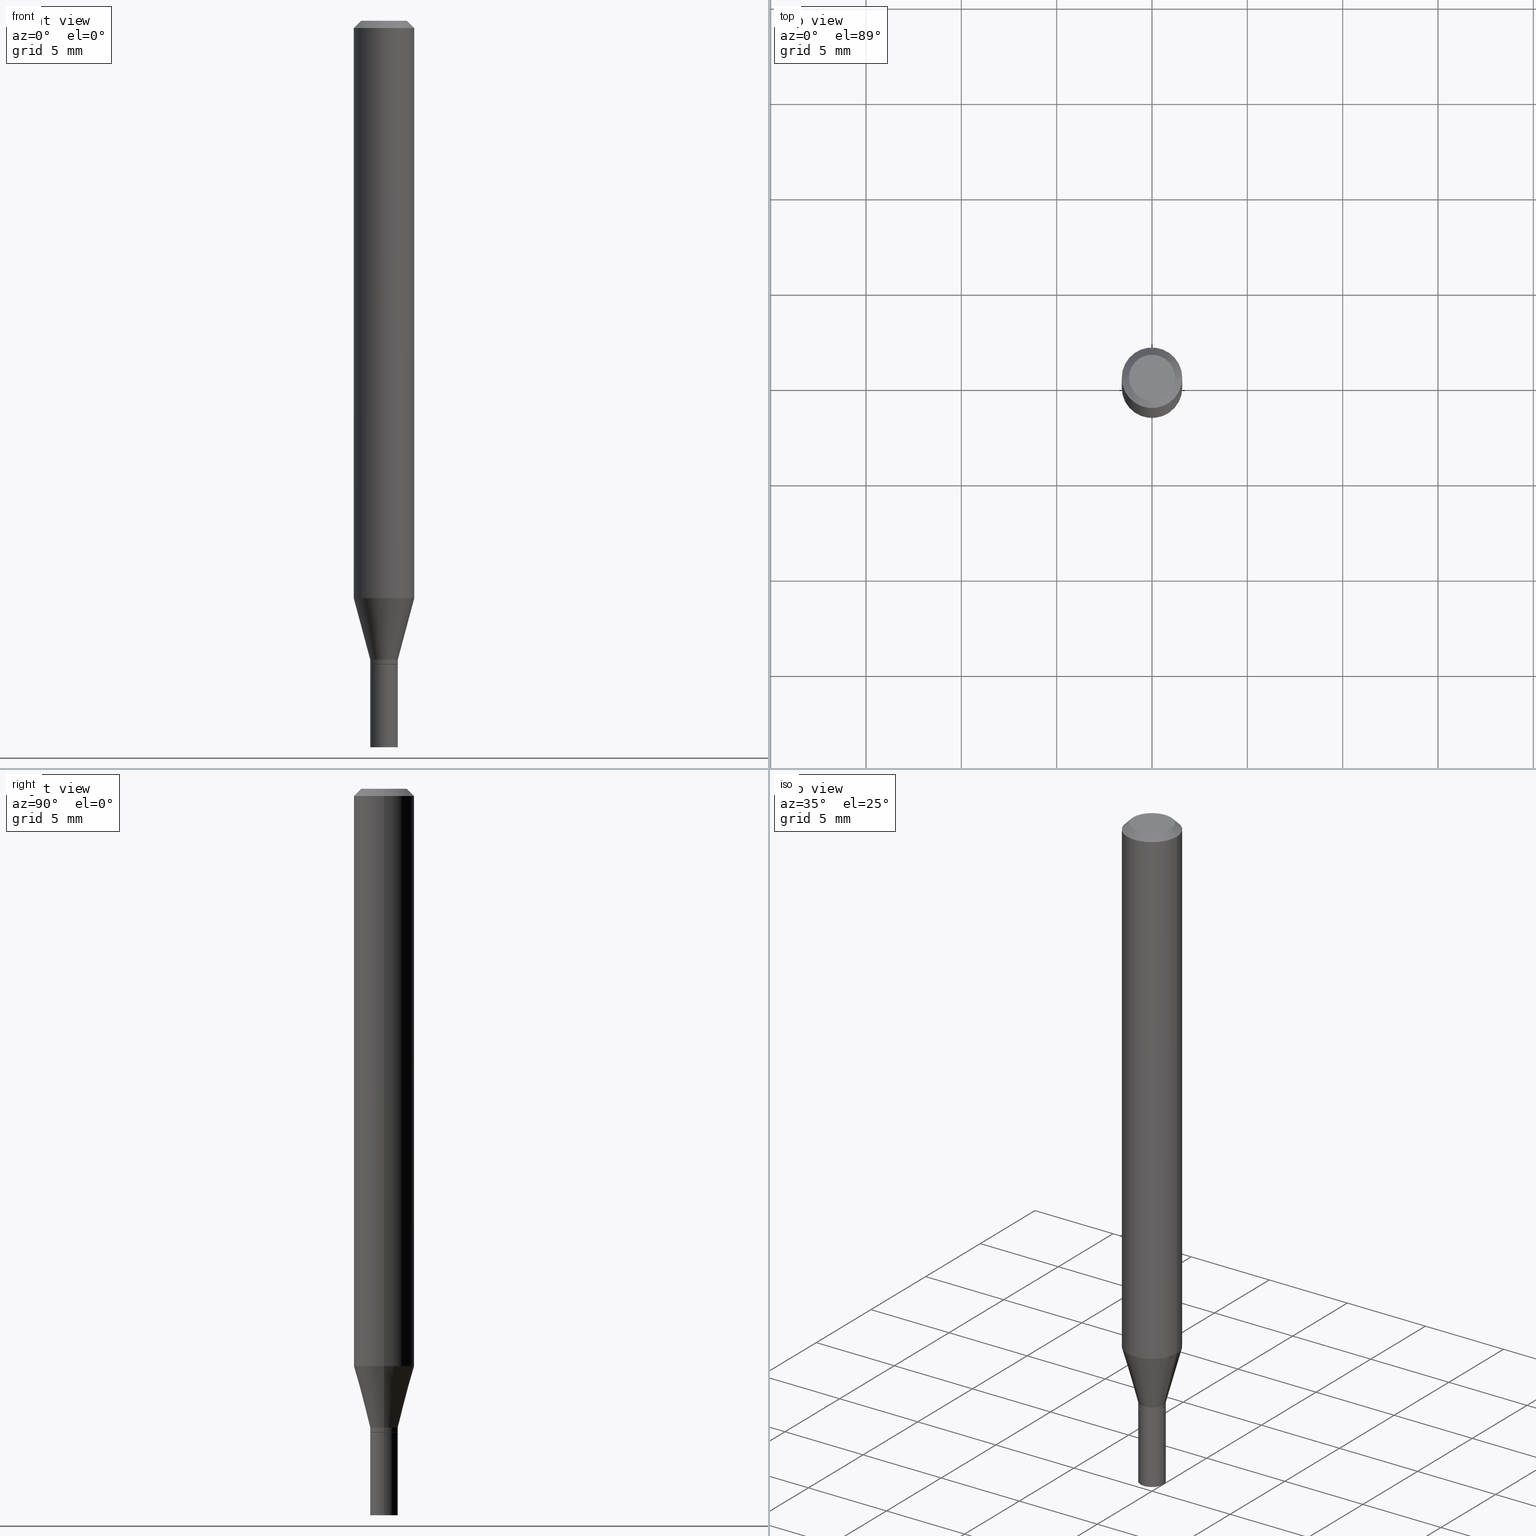
[diagram: canonical four-view strip — front | top / right | iso, engineering-drawing reading convention]
A machine part, canonical four-view strip (front | top / right | iso — engineering-drawing reading convention). The complete STEP part file that produces these views, byte-faithful:
ISO-10303-21;
HEADER;
FILE_DESCRIPTION (( 'STEP AP203' ),
    '1' );
FILE_NAME ('00495.STEP',
    '2024-03-19T21:23:39',
    ( '' ),
    ( '' ),
    'SwSTEP 2.0',
    'SolidWorks 2023',
    '' );
FILE_SCHEMA (( 'CONFIG_CONTROL_DESIGN' ));
ENDSEC;

DATA;
#1 = ORIENTED_EDGE ( 'NONE', *, *, #116, .T. ) ;
#2 = DIRECTION ( 'NONE',  ( -2.445468806185136597E-29, 3.491481338843145583E-15, 1.000000000000000000 ) ) ;
#3 = AXIS2_PLACEMENT_3D ( 'NONE', #456, #233, #277 ) ;
#4 = VERTEX_POINT ( 'NONE', #187 ) ;
#5 = LOCAL_TIME ( 17, 23, 39.00000000000000000, #194 ) ;
#6 = FACE_OUTER_BOUND ( 'NONE', #301, .T. ) ;
#7 = ORIENTED_EDGE ( 'NONE', *, *, #49, .F. ) ;
#8 = EDGE_CURVE ( 'NONE', #391, #222, #180, .T. ) ;
#9 = DIRECTION ( 'NONE',  ( 1.000000000000000000, -6.982962677686280910E-15, 0.000000000000000000 ) ) ;
#10 = DATE_TIME_ROLE ( 'creation_date' ) ;
#11 = CARTESIAN_POINT ( 'NONE',  ( 0.02849999999999991776, -4.804278322248167148E-15, -1.318999999999999950 ) ) ;
#12 = VECTOR ( 'NONE', #348, 39.37007874015748143 ) ;
#13 =( NAMED_UNIT ( * ) PLANE_ANGLE_UNIT ( ) SI_UNIT ( $, .RADIAN. ) );
#14 = PERSON_AND_ORGANIZATION ( #144, #352 ) ;
#15 = CARTESIAN_POINT ( 'NONE',  ( -0.02799999999999999711, -4.441226733309713639E-15, -1.329000000000000181 ) ) ;
#16 = CARTESIAN_POINT ( 'NONE',  ( 0.02799999999999999711, -4.835701654297756579E-15, -1.329000000000000181 ) ) ;
#17 = AXIS2_PLACEMENT_3D ( 'NONE', #200, #416, #241 ) ;
#18 = CC_DESIGN_APPROVAL ( #303, ( #411 ) ) ;
#19 = LINE ( 'NONE', #236, #57 ) ;
#20 = DIRECTION ( 'NONE',  ( -2.445468806185136877E-29, 3.491481338843145188E-15, 1.000000000000000000 ) ) ;
#21 = DIRECTION ( 'NONE',  ( 1.000000000000000000, -6.982962677686265922E-15, 0.000000000000000000 ) ) ;
#22 = CONICAL_SURFACE ( 'NONE', #357, 0.06250000000000000000, 0.7853981633974567167 ) ;
#23 = CARTESIAN_POINT ( 'NONE',  ( 0.06250000000000000000, -4.888073874380388472E-16, -0.01499999999999999944 ) ) ;
#24 = LOCAL_TIME ( 17, 23, 39.00000000000000000, #41 ) ;
#25 = DIRECTION ( 'NONE',  ( -2.445468806185136597E-29, 3.491481338843145583E-15, 1.000000000000000000 ) ) ;
#26 = ADVANCED_FACE ( 'NONE', ( #330 ), #390, .T. ) ;
#27 = FACE_OUTER_BOUND ( 'NONE', #73, .T. ) ;
#28 = DIRECTION ( 'NONE',  ( -2.445468806185136597E-29, 3.491481338843145583E-15, 1.000000000000000000 ) ) ;
#29 = VERTEX_POINT ( 'NONE', #11 ) ;
#30 = ADVANCED_FACE ( 'NONE', ( #298 ), #156, .T. ) ;
#31 = PLANE ( 'NONE',  #172 ) ;
#32 = ORIENTED_EDGE ( 'NONE', *, *, #130, .T. ) ;
#33 = CARTESIAN_POINT ( 'NONE',  ( 6.093689898318465335E-45, -8.700174179635472181E-31, -2.491828921680032634E-16 ) ) ;
#34 = VERTEX_POINT ( 'NONE', #85 ) ;
#35 = DIRECTION ( 'NONE',  ( 1.000000000000000000, -6.982962677686265922E-15, 4.876176775795935232E-29 ) ) ;
#36 = AXIS2_PLACEMENT_3D ( 'NONE', #152, #294, #226 ) ;
#37 = ORIENTED_EDGE ( 'NONE', *, *, #83, .F. ) ;
#38 = AXIS2_PLACEMENT_3D ( 'NONE', #137, #213, #35 ) ;
#39 = CALENDAR_DATE ( 2024, 19, 3 ) ;
#40 = EDGE_LOOP ( 'NONE', ( #76, #71, #102, #372 ) ) ;
#41 = COORDINATED_UNIVERSAL_TIME_OFFSET ( 5, 0, .BEHIND. ) ;
#42 = ORIENTED_EDGE ( 'NONE', *, *, #130, .F. ) ;
#43 = PERSON_AND_ORGANIZATION_ROLE ( 'design_supplier' ) ;
#44 = AXIS2_PLACEMENT_3D ( 'NONE', #311, #350, #21 ) ;
#45 = AXIS2_PLACEMENT_3D ( 'NONE', #314, #103, #142 ) ;
#46 = DIRECTION ( 'NONE',  ( -2.438088387897960049E-29, 3.491481338843145188E-15, 1.000000000000000000 ) ) ;
#47 = EDGE_CURVE ( 'NONE', #400, #64, #461, .T. ) ;
#48 = CARTESIAN_POINT ( 'NONE',  ( 0.000000000000000000, 0.000000000000000000, 0.000000000000000000 ) ) ;
#49 = EDGE_CURVE ( 'NONE', #387, #138, #239, .T. ) ;
#50 = CIRCLE ( 'NONE', #318, 0.04749999999999999362 ) ;
#51 = DATE_TIME_ROLE ( 'classification_date' ) ;
#52 = CIRCLE ( 'NONE', #392, 0.04749999999999999362 ) ;
#53 = LINE ( 'NONE', #269, #12 ) ;
#54 = CARTESIAN_POINT ( 'NONE',  ( 3.250028043420046945E-29, -4.640178699322541079E-15, -1.329000000000000181 ) ) ;
#55 = LINE ( 'NONE', #238, #309 ) ;
#56 = ADVANCED_BREP_SHAPE_REPRESENTATION ( '00495', ( #82, #388, #167 ), #246 ) ;
#57 = VECTOR ( 'NONE', #454, 39.37007874015748143 ) ;
#58 = EDGE_CURVE ( 'NONE', #391, #34, #191, .T. ) ;
#59 = FACE_OUTER_BOUND ( 'NONE', #40, .T. ) ;
#60 = VECTOR ( 'NONE', #243, 39.37007874015748854 ) ;
#61 = APPROVAL_DATE_TIME ( #375, #199 ) ;
#62 = CYLINDRICAL_SURFACE ( 'NONE', #3, 0.02850000000000000103 ) ;
#63 = DIRECTION ( 'NONE',  ( -2.445468806185136877E-29, 3.491481338843145188E-15, 1.000000000000000000 ) ) ;
#64 = VERTEX_POINT ( 'NONE', #263 ) ;
#65 = ADVANCED_FACE ( 'NONE', ( #412 ), #209, .T. ) ;
#66 = CARTESIAN_POINT ( 'NONE',  ( 0.02850000000000000103, -5.436236444578777472E-15, -1.500000000000000222 ) ) ;
#67 = CONICAL_SURFACE ( 'NONE', #218, 0.02799999999999999711, 0.7853981633974739252 ) ;
#68 = AXIS2_PLACEMENT_3D ( 'NONE', #129, #132, #201 ) ;
#69 = ORIENTED_EDGE ( 'NONE', *, *, #153, .F. ) ;
#70 = LINE ( 'NONE', #279, #60 ) ;
#71 = ORIENTED_EDGE ( 'NONE', *, *, #230, .T. ) ;
#72 = DIRECTION ( 'NONE',  ( -1.000000000000000000, 6.982962677686265922E-15, -4.876176775795935793E-29 ) ) ;
#73 = EDGE_LOOP ( 'NONE', ( #78, #143 ) ) ;
#74 = EDGE_CURVE ( 'NONE', #222, #415, #340, .T. ) ;
#75 = VECTOR ( 'NONE', #308, 39.37007874015748143 ) ;
#76 = ORIENTED_EDGE ( 'NONE', *, *, #162, .F. ) ;
#77 = DATE_AND_TIME ( #39, #228 ) ;
#78 = ORIENTED_EDGE ( 'NONE', *, *, #49, .T. ) ;
#79 = COORDINATED_UNIVERSAL_TIME_OFFSET ( 5, 0, .BEHIND. ) ;
#80 = ORIENTED_EDGE ( 'NONE', *, *, #170, .T. ) ;
#81 = EDGE_LOOP ( 'NONE', ( #253, #32, #1, #286 ) ) ;
#82 = MANIFOLD_SOLID_BREP ( 'Body-Move/Copy2[1]', #122 ) ;
#83 = EDGE_CURVE ( 'NONE', #356, #29, #409, .T. ) ;
#84 = DIRECTION ( 'NONE',  ( 1.000000000000000000, -6.982962677686265922E-15, 4.876176775795935793E-29 ) ) ;
#85 = CARTESIAN_POINT ( 'NONE',  ( -0.02849999999999992470, -4.435928278961492815E-15, -1.328500000000000236 ) ) ;
#86 = CIRCLE ( 'NONE', #455, 0.02850000000000000103 ) ;
#87 = VECTOR ( 'NONE', #63, 39.37007874015748143 ) ;
#88 = DATE_AND_TIME ( #446, #147 ) ;
#89 = CARTESIAN_POINT ( 'NONE',  ( 3.250028043420046945E-29, -4.640178699322541079E-15, -1.329000000000000181 ) ) ;
#90 = PRODUCT_RELATED_PRODUCT_CATEGORY ( 'detail', '', ( #406 ) ) ;
#91 = DIRECTION ( 'NONE',  ( 1.000000000000000000, -6.982962677686268288E-15, 0.000000000000000000 ) ) ;
#92 = LINE ( 'NONE', #382, #75 ) ;
#93 = AXIS2_PLACEMENT_3D ( 'NONE', #261, #335, #91 ) ;
#94 = DIRECTION ( 'NONE',  ( -2.445468806185136877E-29, 3.491481338843145188E-15, 1.000000000000000000 ) ) ;
#95 = ORIENTED_EDGE ( 'NONE', *, *, #370, .T. ) ;
#96 = CARTESIAN_POINT ( 'NONE',  ( 3.250028043420046945E-29, -4.640178699322541079E-15, -1.329000000000000181 ) ) ;
#97 = DIRECTION ( 'NONE',  ( 1.000000000000000000, -6.982962677686270655E-15, 0.000000000000000000 ) ) ;
#98 = ORIENTED_EDGE ( 'NONE', *, *, #47, .T. ) ;
#99 = AXIS2_PLACEMENT_3D ( 'NONE', #89, #259, #193 ) ;
#100 = DIRECTION ( 'NONE',  ( 1.000000000000000000, -6.982962677686264344E-15, 0.000000000000000000 ) ) ;
#101 = CARTESIAN_POINT ( 'NONE',  ( 6.093689898318465335E-45, -8.700174179635472181E-31, -2.491828921680032634E-16 ) ) ;
#102 = ORIENTED_EDGE ( 'NONE', *, *, #285, .T. ) ;
#103 = DIRECTION ( 'NONE',  ( -2.445468806185136597E-29, 3.491481338843145583E-15, 1.000000000000000000 ) ) ;
#104 = ORIENTED_EDGE ( 'NONE', *, *, #363, .T. ) ;
#105 = DIRECTION ( 'NONE',  ( -2.445468806185136597E-29, 3.491481338843145583E-15, 1.000000000000000000 ) ) ;
#106 = AXIS2_PLACEMENT_3D ( 'NONE', #160, #257, #113 ) ;
#107 = CIRCLE ( 'NONE', #189, 0.06250000000000000000 ) ;
#108 = ORIENTED_EDGE ( 'NONE', *, *, #270, .T. ) ;
#109 = CARTESIAN_POINT ( 'NONE',  ( 1.990144363140910964E-16, 0.02849999999999535891, -1.329000000000000181 ) ) ;
#110 = ORIENTED_EDGE ( 'NONE', *, *, #155, .F. ) ;
#111 = FACE_OUTER_BOUND ( 'NONE', #429, .T. ) ;
#112 = ORIENTED_EDGE ( 'NONE', *, *, #385, .F. ) ;
#113 = DIRECTION ( 'NONE',  ( 1.000000000000000000, -6.982962677686268288E-15, 0.000000000000000000 ) ) ;
#114 = AXIS2_PLACEMENT_3D ( 'NONE', #433, #206, #72 ) ;
#115 = DIRECTION ( 'NONE',  ( -2.445468806185136597E-29, 3.491481338843145583E-15, 1.000000000000000000 ) ) ;
#116 = EDGE_CURVE ( 'NONE', #176, #426, #161, .T. ) ;
#117 = DIRECTION ( 'NONE',  ( 1.000000000000000000, -6.982962677686266711E-15, 4.876176775795935793E-29 ) ) ;
#118 = EDGE_LOOP ( 'NONE', ( #437, #405, #244, #396 ) ) ;
#119 = DESIGN_CONTEXT ( 'detailed design', #282, 'design' ) ;
#120 = PERSON_AND_ORGANIZATION ( #144, #352 ) ;
#121 = DIRECTION ( 'NONE',  ( -0.7071067811865656694, 7.493145998870420424E-15, 0.7071067811865294761 ) ) ;
#122 = CLOSED_SHELL ( 'NONE', ( #165, #466, #30, #327 ) ) ;
#123 = CC_DESIGN_PERSON_AND_ORGANIZATION_ASSIGNMENT ( #192, #197, ( #235 ) ) ;
#124 = DIRECTION ( 'NONE',  ( -2.445468806185136597E-29, 3.491481338843145583E-15, 1.000000000000000000 ) ) ;
#125 = DIRECTION ( 'NONE',  ( -2.445468806185136597E-29, 3.491481338843145583E-15, 1.000000000000000000 ) ) ;
#126 = DIRECTION ( 'NONE',  ( -2.445468806185136597E-29, 3.491481338843145583E-15, 1.000000000000000000 ) ) ;
#127 = CARTESIAN_POINT ( 'NONE',  ( -0.06250000000000000000, 3.840629472727444916E-16, -0.01499999999999999944 ) ) ;
#128 = AXIS2_PLACEMENT_3D ( 'NONE', #360, #2, #386 ) ;
#129 = CARTESIAN_POINT ( 'NONE',  ( 3.225573355358195400E-29, -4.605263885934108641E-15, -1.318999999999999950 ) ) ;
#130 = EDGE_CURVE ( 'NONE', #288, #176, #53, .T. ) ;
#131 = ADVANCED_FACE ( 'NONE', ( #306 ), #67, .T. ) ;
#132 = DIRECTION ( 'NONE',  ( -2.445468806185136597E-29, 3.491481338843145583E-15, 1.000000000000000000 ) ) ;
#133 = ADVANCED_FACE ( 'NONE', ( #420 ), #188, .T. ) ;
#134 = DIRECTION ( 'NONE',  ( -2.445468806185136597E-29, 3.491481338843145583E-15, 1.000000000000000000 ) ) ;
#135 = EDGE_CURVE ( 'NONE', #415, #34, #421, .T. ) ;
#136 = VECTOR ( 'NONE', #379, 39.37007874015748143 ) ;
#137 = CARTESIAN_POINT ( 'NONE',  ( 0.000000000000000000, 0.000000000000000000, 0.000000000000000000 ) ) ;
#138 = VERTEX_POINT ( 'NONE', #384 ) ;
#139 = APPROVAL_ROLE ( '' ) ;
#140 = FACE_OUTER_BOUND ( 'NONE', #424, .T. ) ;
#141 = ORIENTED_EDGE ( 'NONE', *, *, #47, .F. ) ;
#142 = DIRECTION ( 'NONE',  ( 1.000000000000000000, -6.982962677686265922E-15, 4.876176775795935232E-29 ) ) ;
#143 = ORIENTED_EDGE ( 'NONE', *, *, #220, .T. ) ;
#144 = PERSON ( 'UNSPECIFIED', 'UNSPECIFIED', 'UNSPECIFIED', ('UNSPECIFIED'), ('UNSPECIFIED'), ('UNSPECIFIED') ) ;
#145 = CARTESIAN_POINT ( 'NONE',  ( -0.02850000000000000103, 2.025046796916285603E-16, -1.401896500722648086E-30 ) ) ;
#146 = AXIS2_PLACEMENT_3D ( 'NONE', #417, #452, #353 ) ;
#147 = LOCAL_TIME ( 17, 23, 39.00000000000000000, #158 ) ;
#148 = ORIENTED_EDGE ( 'NONE', *, *, #230, .F. ) ;
#149 = CYLINDRICAL_SURFACE ( 'NONE', #310, 0.06250000000000000000 ) ;
#150 = ORIENTED_EDGE ( 'NONE', *, *, #116, .F. ) ;
#151 = DIRECTION ( 'NONE',  ( 1.000000000000000000, 0.000000000000000000, 0.000000000000000000 ) ) ;
#152 = CARTESIAN_POINT ( 'NONE',  ( 3.250028043420046945E-29, -4.640178699322541079E-15, -1.329000000000000181 ) ) ;
#153 = EDGE_CURVE ( 'NONE', #29, #356, #227, .T. ) ;
#154 = APPROVAL_ROLE ( '' ) ;
#155 = EDGE_CURVE ( 'NONE', #34, #356, #198, .T. ) ;
#156 = CYLINDRICAL_SURFACE ( 'NONE', #332, 0.02850000000000000103 ) ;
#157 = ORIENTED_EDGE ( 'NONE', *, *, #338, .F. ) ;
#158 = COORDINATED_UNIVERSAL_TIME_OFFSET ( 5, 0, .BEHIND. ) ;
#159 = ORIENTED_EDGE ( 'NONE', *, *, #8, .T. ) ;
#160 = CARTESIAN_POINT ( 'NONE',  ( 3.225573355358195400E-29, -4.605263885934108641E-15, -1.318999999999999950 ) ) ;
#161 = CIRCLE ( 'NONE', #289, 0.06250000000000000000 ) ;
#162 = EDGE_CURVE ( 'NONE', #322, #426, #92, .T. ) ;
#163 = LINE ( 'NONE', #272, #402 ) ;
#164 = DIRECTION ( 'NONE',  ( -2.445468806185136597E-29, 3.491481338843145583E-15, 1.000000000000000000 ) ) ;
#165 = ADVANCED_FACE ( 'NONE', ( #347 ), #62, .T. ) ;
#166 = CARTESIAN_POINT ( 'NONE',  ( -0.02849999999999992470, 2.025046796916280179E-16, -1.401896500722644233E-30 ) ) ;
#167 = AXIS2_PLACEMENT_3D ( 'NONE', #48, #339, #151 ) ;
#168 = CARTESIAN_POINT ( 'NONE',  ( 3.668203209277705088E-31, -5.237222008264718399E-17, -0.01499999999999999944 ) ) ;
#169 = DIRECTION ( 'NONE',  ( 1.000000000000000000, -6.982962677686266711E-15, 0.000000000000000000 ) ) ;
#170 = EDGE_CURVE ( 'NONE', #64, #400, #86, .T. ) ;
#171 = DIRECTION ( 'NONE',  ( -1.000000000000000000, 6.982962677686265922E-15, -4.876176775795935793E-29 ) ) ;
#172 = AXIS2_PLACEMENT_3D ( 'NONE', #109, #242, #171 ) ;
#173 = FACE_OUTER_BOUND ( 'NONE', #118, .T. ) ;
#174 = APPROVAL_PERSON_ORGANIZATION ( #281, #199, #139 ) ;
#175 = DIRECTION ( 'NONE',  ( -2.438088387897960049E-29, 3.491481338843145188E-15, 1.000000000000000000 ) ) ;
#176 = VERTEX_POINT ( 'NONE', #23 ) ;
#177 = CARTESIAN_POINT ( 'NONE',  ( -0.02799999999999999711, -4.438577506135602438E-15, -1.329000000000000181 ) ) ;
#178 = ORIENTED_EDGE ( 'NONE', *, *, #380, .T. ) ;
#179 = DIRECTION ( 'NONE',  ( 1.000000000000000000, -6.982962677686270655E-15, 0.000000000000000000 ) ) ;
#180 = CIRCLE ( 'NONE', #383, 0.02799999999999999711 ) ;
#181 = ORIENTED_EDGE ( 'NONE', *, *, #162, .T. ) ;
#182 =( NAMED_UNIT ( * ) SI_UNIT ( $, .STERADIAN. ) SOLID_ANGLE_UNIT ( ) );
#183 = EDGE_CURVE ( 'NONE', #400, #387, #55, .T. ) ;
#184 = CALENDAR_DATE ( 2024, 19, 3 ) ;
#185 = EDGE_LOOP ( 'NONE', ( #462, #276, #69, #248 ) ) ;
#186 = SECURITY_CLASSIFICATION_LEVEL ( 'unclassified' ) ;
#187 = CARTESIAN_POINT ( 'NONE',  ( -0.04749999999999999362, 3.578768372314206562E-16, -2.491828921680056300E-16 ) ) ;
#188 = CONICAL_SURFACE ( 'NONE', #17, 0.06250000000000000000, 0.7853981633974567167 ) ;
#189 = AXIS2_PLACEMENT_3D ( 'NONE', #425, #362, #179 ) ;
#190 = APPROVAL_ROLE ( '' ) ;
#191 = LINE ( 'NONE', #15, #245 ) ;
#192 = PERSON_AND_ORGANIZATION ( #144, #352 ) ;
#193 = DIRECTION ( 'NONE',  ( 1.000000000000000000, -6.982962677686264344E-15, 0.000000000000000000 ) ) ;
#194 = COORDINATED_UNIVERSAL_TIME_OFFSET ( 5, 0, .BEHIND. ) ;
#195 = ORIENTED_EDGE ( 'NONE', *, *, #305, .T. ) ;
#196 = CIRCLE ( 'NONE', #255, 0.02849999999999992470 ) ;
#197 = PERSON_AND_ORGANIZATION_ROLE ( 'classification_officer' ) ;
#198 = LINE ( 'NONE', #166, #278 ) ;
#199 = APPROVAL ( #346, 'UNSPECIFIED' ) ;
#200 = CARTESIAN_POINT ( 'NONE',  ( 3.668203209277705088E-31, -5.237222008264718399E-17, -0.01499999999999999944 ) ) ;
#201 = DIRECTION ( 'NONE',  ( 1.000000000000000000, -6.982962677686268288E-15, 0.000000000000000000 ) ) ;
#202 = AXIS2_PLACEMENT_3D ( 'NONE', #307, #25, #169 ) ;
#203 = LOCAL_TIME ( 17, 23, 39.00000000000000000, #317 ) ;
#204 = CYLINDRICAL_SURFACE ( 'NONE', #146, 0.06250000000000000000 ) ;
#205 = CC_DESIGN_PERSON_AND_ORGANIZATION_ASSIGNMENT ( #223, #43, ( #411 ) ) ;
#206 = DIRECTION ( 'NONE',  ( 2.438088387897960049E-29, -3.491481338843145188E-15, -1.000000000000000000 ) ) ;
#207 = DIRECTION ( 'NONE',  ( 1.000000000000000000, -6.982962677686265922E-15, 0.000000000000000000 ) ) ;
#208 = ORIENTED_EDGE ( 'NONE', *, *, #370, .F. ) ;
#209 = CONICAL_SURFACE ( 'NONE', #99, 0.02799999999999999711, 0.7853981633974739252 ) ;
#210 = CARTESIAN_POINT ( 'NONE',  ( -0.02849999999999991776, -4.402759206242480303E-15, -1.318999999999999950 ) ) ;
#211 = ORIENTED_EDGE ( 'NONE', *, *, #299, .T. ) ;
#212 = ADVANCED_FACE ( 'NONE', ( #273 ), #22, .T. ) ;
#213 = DIRECTION ( 'NONE',  ( -2.445468806185136597E-29, 3.491481338843145583E-15, 1.000000000000000000 ) ) ;
#214 = EDGE_LOOP ( 'NONE', ( #157, #221, #104, #148 ) ) ;
#215 = DIRECTION ( 'NONE',  ( 1.000000000000000000, -6.982962677686268288E-15, 0.000000000000000000 ) ) ;
#216 = ORIENTED_EDGE ( 'NONE', *, *, #74, .F. ) ;
#217 = PERSON_AND_ORGANIZATION ( #144, #352 ) ;
#218 = AXIS2_PLACEMENT_3D ( 'NONE', #54, #126, #100 ) ;
#219 = AXIS2_PLACEMENT_3D ( 'NONE', #371, #46, #84 ) ;
#220 = EDGE_CURVE ( 'NONE', #138, #387, #378, .T. ) ;
#221 = ORIENTED_EDGE ( 'NONE', *, *, #83, .T. ) ;
#222 = VERTEX_POINT ( 'NONE', #418 ) ;
#223 = PERSON_AND_ORGANIZATION ( #144, #352 ) ;
#224 = ORIENTED_EDGE ( 'NONE', *, *, #299, .F. ) ;
#225 = DIMENSIONAL_EXPONENTS ( 1.000000000000000000, 0.000000000000000000, 0.000000000000000000, 0.000000000000000000, 0.000000000000000000, 0.000000000000000000, 0.000000000000000000 ) ;
#226 = DIRECTION ( 'NONE',  ( 1.000000000000000000, -6.982962677686280910E-15, 0.000000000000000000 ) ) ;
#227 = CIRCLE ( 'NONE', #68, 0.02849999999999991776 ) ;
#228 = LOCAL_TIME ( 17, 23, 39.00000000000000000, #79 ) ;
#229 = PERSON_AND_ORGANIZATION_ROLE ( 'creator' ) ;
#230 = EDGE_CURVE ( 'NONE', #322, #324, #264, .T. ) ;
#231 = ORIENTED_EDGE ( 'NONE', *, *, #8, .F. ) ;
#232 = ORIENTED_EDGE ( 'NONE', *, *, #436, .T. ) ;
#233 = DIRECTION ( 'NONE',  ( -2.445468806185136597E-29, 3.491481338843145583E-15, 1.000000000000000000 ) ) ;
#234 = AXIS2_PLACEMENT_3D ( 'NONE', #247, #397, #215 ) ;
#235 = SECURITY_CLASSIFICATION ( '', '', #186 ) ;
#236 = CARTESIAN_POINT ( 'NONE',  ( 0.02849999999999992470, -1.990144363140580629E-16, 1.389710381101837840E-30 ) ) ;
#237 = DIRECTION ( 'NONE',  ( -2.445468806185136597E-29, 3.491481338843145583E-15, 1.000000000000000000 ) ) ;
#238 = CARTESIAN_POINT ( 'NONE',  ( 0.02850000000000000103, -1.990144363140586052E-16, 1.389710381101841869E-30 ) ) ;
#239 = CIRCLE ( 'NONE', #36, 0.02850000000000000103 ) ;
#240 = CC_DESIGN_DATE_AND_TIME_ASSIGNMENT ( #329, #10, ( #349 ) ) ;
#241 = DIRECTION ( 'NONE',  ( -1.000000000000000000, 6.982962677686266711E-15, 0.000000000000000000 ) ) ;
#242 = DIRECTION ( 'NONE',  ( 2.438088387897960049E-29, -3.491481338843145188E-15, -1.000000000000000000 ) ) ;
#243 = DIRECTION ( 'NONE',  ( 0.2588190451025211836, 1.565188264969622559E-15, 0.9659258262890679791 ) ) ;
#244 = ORIENTED_EDGE ( 'NONE', *, *, #436, .F. ) ;
#245 = VECTOR ( 'NONE', #121, 39.37007874015748143 ) ;
#246 =( GEOMETRIC_REPRESENTATION_CONTEXT ( 3 ) GLOBAL_UNCERTAINTY_ASSIGNED_CONTEXT ( ( #345 ) ) GLOBAL_UNIT_ASSIGNED_CONTEXT ( ( #449, #13, #182 ) ) REPRESENTATION_CONTEXT ( 'NONE', 'WORKASPACE' ) );
#247 = CARTESIAN_POINT ( 'NONE',  ( 3.225573355358195400E-29, -4.605263885934108641E-15, -1.318999999999999950 ) ) ;
#248 = ORIENTED_EDGE ( 'NONE', *, *, #268, .F. ) ;
#249 = DIRECTION ( 'NONE',  ( 1.000000000000000000, -6.982962677686267499E-15, 4.852736867747366768E-29 ) ) ;
#250 = EDGE_LOOP ( 'NONE', ( #364, #159, #359, #224 ) ) ;
#251 = CARTESIAN_POINT ( 'NONE',  ( -0.06250000000000000000, -3.718141560575843830E-15, -1.192110272542658223 ) ) ;
#252 = ADVANCED_FACE ( 'NONE', ( #59 ), #204, .T. ) ;
#253 = ORIENTED_EDGE ( 'NONE', *, *, #305, .F. ) ;
#254 = CARTESIAN_POINT ( 'NONE',  ( 0.000000000000000000, 0.000000000000000000, 0.000000000000000000 ) ) ;
#255 = AXIS2_PLACEMENT_3D ( 'NONE', #465, #28, #207 ) ;
#256 = AXIS2_PLACEMENT_3D ( 'NONE', #323, #175, #463 ) ;
#257 = DIRECTION ( 'NONE',  ( -2.445468806185136597E-29, 3.491481338843145583E-15, 1.000000000000000000 ) ) ;
#258 = PERSON_AND_ORGANIZATION ( #144, #352 ) ;
#259 = DIRECTION ( 'NONE',  ( -2.445468806185136597E-29, 3.491481338843145583E-15, 1.000000000000000000 ) ) ;
#260 = PERSON_AND_ORGANIZATION_ROLE ( 'design_owner' ) ;
#261 = CARTESIAN_POINT ( 'NONE',  ( 3.225573355358195400E-29, -4.605263885934108641E-15, -1.318999999999999950 ) ) ;
#262 = EDGE_CURVE ( 'NONE', #426, #176, #351, .T. ) ;
#263 = CARTESIAN_POINT ( 'NONE',  ( -0.02850000000000000103, -4.736195674102000895E-15, -1.500000000000000222 ) ) ;
#264 = CIRCLE ( 'NONE', #428, 0.06250000000000000000 ) ;
#265 = CC_DESIGN_APPROVAL ( #199, ( #235 ) ) ;
#266 = MECHANICAL_CONTEXT ( 'NONE', #373, 'mechanical' ) ;
#267 = DIRECTION ( 'NONE',  ( 1.000000000000000000, -6.982962677686266711E-15, 0.000000000000000000 ) ) ;
#268 = EDGE_CURVE ( 'NONE', #415, #29, #19, .T. ) ;
#269 = CARTESIAN_POINT ( 'NONE',  ( 0.06250000000000000000, -4.811533449433679005E-16, -0.01499999999999999944 ) ) ;
#270 = EDGE_CURVE ( 'NONE', #4, #426, #459, .T. ) ;
#271 = SHAPE_DEFINITION_REPRESENTATION ( #333, #56 ) ;
#272 = CARTESIAN_POINT ( 'NONE',  ( 0.06250000000000000000, -4.364351673553916694E-16, 3.047610484872459871E-30 ) ) ;
#273 = FACE_OUTER_BOUND ( 'NONE', #464, .T. ) ;
#274 = CARTESIAN_POINT ( 'NONE',  ( 2.915268485035931806E-29, -4.162230770425907235E-15, -1.192110272542658223 ) ) ;
#275 = CC_DESIGN_DATE_AND_TIME_ASSIGNMENT ( #413, #51, ( #235 ) ) ;
#276 = ORIENTED_EDGE ( 'NONE', *, *, #155, .T. ) ;
#277 = DIRECTION ( 'NONE',  ( 1.000000000000000000, -6.982962677686266711E-15, 4.876176775795936353E-29 ) ) ;
#278 = VECTOR ( 'NONE', #381, 39.37007874015748143 ) ;
#279 = CARTESIAN_POINT ( 'NONE',  ( 0.02849999999999991776, -4.804278322248167148E-15, -1.318999999999999950 ) ) ;
#280 = ORIENTED_EDGE ( 'NONE', *, *, #183, .T. ) ;
#281 = PERSON_AND_ORGANIZATION ( #144, #352 ) ;
#282 = APPLICATION_CONTEXT ( 'configuration controlled 3d designs of mechanical parts and assemblies' ) ;
#283 = CARTESIAN_POINT ( 'NONE',  ( 0.02849999999999992470, -4.837447394967178082E-15, -1.328500000000000236 ) ) ;
#284 = APPROVAL ( #368, 'UNSPECIFIED' ) ;
#285 = EDGE_CURVE ( 'NONE', #324, #176, #163, .T. ) ;
#286 = ORIENTED_EDGE ( 'NONE', *, *, #270, .F. ) ;
#287 = CYLINDRICAL_SURFACE ( 'NONE', #45, 0.02849999999999992470 ) ;
#288 = VERTEX_POINT ( 'NONE', #321 ) ;
#289 = AXIS2_PLACEMENT_3D ( 'NONE', #450, #125, #267 ) ;
#290 = PLANE ( 'NONE',  #114 ) ;
#291 = ORIENTED_EDGE ( 'NONE', *, *, #170, .F. ) ;
#292 = LINE ( 'NONE', #210, #422 ) ;
#293 = EDGE_LOOP ( 'NONE', ( #95, #326, #404, #216 ) ) ;
#294 = DIRECTION ( 'NONE',  ( -2.445468806185136597E-29, 3.491481338843145583E-15, 1.000000000000000000 ) ) ;
#295 = APPROVAL_DATE_TIME ( #88, #303 ) ;
#296 = CARTESIAN_POINT ( 'NONE',  ( 3.250028043420046945E-29, -4.640178699322541079E-15, -1.329000000000000181 ) ) ;
#297 = PLANE ( 'NONE',  #219 ) ;
#298 = FACE_OUTER_BOUND ( 'NONE', #361, .T. ) ;
#299 = EDGE_CURVE ( 'NONE', #34, #415, #196, .T. ) ;
#300 = APPROVAL_STATUS ( 'not_yet_approved' ) ;
#301 = EDGE_LOOP ( 'NONE', ( #110, #211, #395, #37 ) ) ;
#302 =( LENGTH_UNIT ( ) NAMED_UNIT ( * ) SI_UNIT ( $, .METRE. ) );
#303 = APPROVAL ( #300, 'UNSPECIFIED' ) ;
#304 = CALENDAR_DATE ( 2024, 19, 3 ) ;
#305 = EDGE_CURVE ( 'NONE', #288, #4, #50, .T. ) ;
#306 = FACE_OUTER_BOUND ( 'NONE', #293, .T. ) ;
#307 = CARTESIAN_POINT ( 'NONE',  ( 3.668203209277705088E-31, -5.237222008264718399E-17, -0.01499999999999999944 ) ) ;
#308 = DIRECTION ( 'NONE',  ( -2.445468806185136877E-29, 3.491481338843145188E-15, 1.000000000000000000 ) ) ;
#309 = VECTOR ( 'NONE', #20, 39.37007874015748143 ) ;
#310 = AXIS2_PLACEMENT_3D ( 'NONE', #254, #124, #117 ) ;
#311 = CARTESIAN_POINT ( 'NONE',  ( 3.248805309016954704E-29, -4.638432958653120365E-15, -1.328500000000000236 ) ) ;
#312 = ADVANCED_FACE ( 'NONE', ( #173 ), #441, .T. ) ;
#313 = CARTESIAN_POINT ( 'NONE',  ( 3.668203209277704895E-29, -5.237222008264718177E-15, -1.500000000000000222 ) ) ;
#314 = CARTESIAN_POINT ( 'NONE',  ( 0.000000000000000000, 0.000000000000000000, 0.000000000000000000 ) ) ;
#315 = ADVANCED_FACE ( 'NONE', ( #394 ), #427, .T. ) ;
#316 = EDGE_LOOP ( 'NONE', ( #98, #320, #7, #374 ) ) ;
#317 = COORDINATED_UNIVERSAL_TIME_OFFSET ( 5, 0, .BEHIND. ) ;
#318 = AXIS2_PLACEMENT_3D ( 'NONE', #101, #105, #249 ) ;
#319 = DIRECTION ( 'NONE',  ( -0.2588190451025211836, 5.211531920934547886E-15, 0.9659258262890679791 ) ) ;
#320 = ORIENTED_EDGE ( 'NONE', *, *, #385, .T. ) ;
#321 = CARTESIAN_POINT ( 'NONE',  ( 0.04749999999999999362, -4.035134999187582567E-16, -2.491828921680006996E-16 ) ) ;
#322 = VERTEX_POINT ( 'NONE', #251 ) ;
#323 = CARTESIAN_POINT ( 'NONE',  ( 3.250028043420046945E-29, -4.640178699322541079E-15, -1.329000000000000181 ) ) ;
#324 = VERTEX_POINT ( 'NONE', #460 ) ;
#325 = FACE_OUTER_BOUND ( 'NONE', #430, .T. ) ;
#326 = ORIENTED_EDGE ( 'NONE', *, *, #58, .T. ) ;
#327 = ADVANCED_FACE ( 'NONE', ( #27 ), #31, .F. ) ;
#328 = FACE_OUTER_BOUND ( 'NONE', #367, .T. ) ;
#329 = DATE_AND_TIME ( #184, #24 ) ;
#330 = FACE_OUTER_BOUND ( 'NONE', #214, .T. ) ;
#331 = AXIS2_PLACEMENT_3D ( 'NONE', #337, #115, #9 ) ;
#332 = AXIS2_PLACEMENT_3D ( 'NONE', #445, #443, #408 ) ;
#333 = PRODUCT_DEFINITION_SHAPE ( 'NONE', 'NONE',  #349 ) ;
#334 = CC_DESIGN_SECURITY_CLASSIFICATION ( #235, ( #411 ) ) ;
#335 = DIRECTION ( 'NONE',  ( -2.445468806185136597E-29, 3.491481338843145583E-15, 1.000000000000000000 ) ) ;
#336 = APPROVAL_DATE_TIME ( #77, #284 ) ;
#337 = CARTESIAN_POINT ( 'NONE',  ( 3.668203209277704895E-29, -5.237222008264718177E-15, -1.500000000000000222 ) ) ;
#338 = EDGE_CURVE ( 'NONE', #356, #322, #292, .T. ) ;
#339 = DIRECTION ( 'NONE',  ( 0.000000000000000000, 0.000000000000000000, 1.000000000000000000 ) ) ;
#340 = LINE ( 'NONE', #16, #365 ) ;
#341 = ADVANCED_FACE ( 'NONE', ( #6 ), #287, .T. ) ;
#342 = CALENDAR_DATE ( 2024, 19, 3 ) ;
#343 = DIRECTION ( 'NONE',  ( 2.445468806185136597E-29, -3.491481338843145583E-15, -1.000000000000000000 ) ) ;
#344 = AXIS2_PLACEMENT_3D ( 'NONE', #96, #164, #458 ) ;
#345 = UNCERTAINTY_MEASURE_WITH_UNIT (LENGTH_MEASURE( 1.000000000000000082E-05 ), #449, 'distance_accuracy_value', 'NONE');
#346 = APPROVAL_STATUS ( 'not_yet_approved' ) ;
#347 = FACE_OUTER_BOUND ( 'NONE', #316, .T. ) ;
#348 = DIRECTION ( 'NONE',  ( 0.7071067811865534569, -7.319954787623276556E-15, -0.7071067811865415775 ) ) ;
#349 = PRODUCT_DEFINITION ( 'UNKNOWN', '', #411, #119 ) ;
#350 = DIRECTION ( 'NONE',  ( -2.445468806185136597E-29, 3.491481338843145583E-15, 1.000000000000000000 ) ) ;
#351 = CIRCLE ( 'NONE', #202, 0.06250000000000000000 ) ;
#352 = ORGANIZATION ( 'UNSPECIFIED', 'UNSPECIFIED', '' ) ;
#353 = DIRECTION ( 'NONE',  ( 1.000000000000000000, -6.982962677686266711E-15, 4.876176775795935793E-29 ) ) ;
#354 = CARTESIAN_POINT ( 'NONE',  ( -0.06250000000000000000, -1.663212285404214738E-15, -0.01499999999999999944 ) ) ;
#355 = CARTESIAN_POINT ( 'NONE',  ( 0.02850000000000000103, -4.839193135636600375E-15, -1.329000000000000181 ) ) ;
#356 = VERTEX_POINT ( 'NONE', #399 ) ;
#357 = AXIS2_PLACEMENT_3D ( 'NONE', #168, #343, #419 ) ;
#358 = PLANE ( 'NONE',  #256 ) ;
#359 = ORIENTED_EDGE ( 'NONE', *, *, #74, .T. ) ;
#360 = CARTESIAN_POINT ( 'NONE',  ( 3.250028043420046945E-29, -4.640178699322541079E-15, -1.329000000000000181 ) ) ;
#361 = EDGE_LOOP ( 'NONE', ( #112, #80, #280, #398 ) ) ;
#362 = DIRECTION ( 'NONE',  ( -2.445468806185136597E-29, 3.491481338843145583E-15, 1.000000000000000000 ) ) ;
#363 = EDGE_CURVE ( 'NONE', #29, #324, #70, .T. ) ;
#364 = ORIENTED_EDGE ( 'NONE', *, *, #58, .F. ) ;
#365 = VECTOR ( 'NONE', #439, 39.37007874015748143 ) ;
#366 = APPLICATION_PROTOCOL_DEFINITION ( 'international standard', 'config_control_design', 1994, #282 ) ;
#367 = EDGE_LOOP ( 'NONE', ( #141, #291 ) ) ;
#368 = APPROVAL_STATUS ( 'not_yet_approved' ) ;
#369 = ORIENTED_EDGE ( 'NONE', *, *, #262, .T. ) ;
#370 = EDGE_CURVE ( 'NONE', #222, #391, #457, .T. ) ;
#371 = CARTESIAN_POINT ( 'NONE',  ( 3.576687321579069994E-29, -5.368277968210015545E-15, -1.500000000000000222 ) ) ;
#372 = ORIENTED_EDGE ( 'NONE', *, *, #262, .F. ) ;
#373 = APPLICATION_CONTEXT ( 'configuration controlled 3d designs of mechanical parts and assemblies' ) ;
#374 = ORIENTED_EDGE ( 'NONE', *, *, #183, .F. ) ;
#375 = DATE_AND_TIME ( #304, #5 ) ;
#376 = DIRECTION ( 'NONE',  ( -2.445468806185136597E-29, 3.491481338843145583E-15, 1.000000000000000000 ) ) ;
#377 = DIRECTION ( 'NONE',  ( 1.000000000000000000, -6.982962677686280910E-15, 0.000000000000000000 ) ) ;
#378 = CIRCLE ( 'NONE', #344, 0.02850000000000000103 ) ;
#379 = DIRECTION ( 'NONE',  ( -0.7071067811865534569, 2.468850131082318986E-15, -0.7071067811865415775 ) ) ;
#380 = EDGE_CURVE ( 'NONE', #4, #288, #52, .T. ) ;
#381 = DIRECTION ( 'NONE',  ( -2.445468806185136877E-29, 3.491481338843145188E-15, 1.000000000000000000 ) ) ;
#382 = CARTESIAN_POINT ( 'NONE',  ( -0.06250000000000000000, 4.440892098500626162E-16, -3.074334431409316114E-30 ) ) ;
#383 = AXIS2_PLACEMENT_3D ( 'NONE', #296, #376, #447 ) ;
#384 = CARTESIAN_POINT ( 'NONE',  ( -0.02850000000000000103, -4.736195674102000895E-15, -1.329000000000000181 ) ) ;
#385 = EDGE_CURVE ( 'NONE', #64, #138, #389, .T. ) ;
#386 = DIRECTION ( 'NONE',  ( 1.000000000000000000, -6.982962677686264344E-15, 0.000000000000000000 ) ) ;
#387 = VERTEX_POINT ( 'NONE', #355 ) ;
#388 = MANIFOLD_SOLID_BREP ( 'Body-Move/Copy2[2]', #448 ) ;
#389 = LINE ( 'NONE', #145, #87 ) ;
#390 = CONICAL_SURFACE ( 'NONE', #93, 0.02849999999999991776, 0.2617993877991499074 ) ;
#391 = VERTEX_POINT ( 'NONE', #177 ) ;
#392 = AXIS2_PLACEMENT_3D ( 'NONE', #33, #423, #435 ) ;
#393 = APPROVAL_PERSON_ORGANIZATION ( #14, #303, #154 ) ;
#394 = FACE_OUTER_BOUND ( 'NONE', #185, .T. ) ;
#395 = ORIENTED_EDGE ( 'NONE', *, *, #268, .T. ) ;
#396 = ORIENTED_EDGE ( 'NONE', *, *, #363, .F. ) ;
#397 = DIRECTION ( 'NONE',  ( -2.445468806185136597E-29, 3.491481338843145583E-15, 1.000000000000000000 ) ) ;
#398 = ORIENTED_EDGE ( 'NONE', *, *, #220, .F. ) ;
#399 = CARTESIAN_POINT ( 'NONE',  ( -0.02849999999999991776, -4.060450383409162461E-15, -1.318999999999999950 ) ) ;
#400 = VERTEX_POINT ( 'NONE', #66 ) ;
#401 = ADVANCED_FACE ( 'NONE', ( #111 ), #358, .F. ) ;
#402 = VECTOR ( 'NONE', #94, 39.37007874015748143 ) ;
#403 = APPLICATION_PROTOCOL_DEFINITION ( 'international standard', 'config_control_design', 1994, #373 ) ;
#404 = ORIENTED_EDGE ( 'NONE', *, *, #135, .F. ) ;
#405 = ORIENTED_EDGE ( 'NONE', *, *, #338, .T. ) ;
#406 = PRODUCT ( '00495', '00495', '', ( #266 ) ) ;
#407 = PERSON_AND_ORGANIZATION ( #144, #352 ) ;
#408 = DIRECTION ( 'NONE',  ( 1.000000000000000000, -6.982962677686266711E-15, 4.876176775795936353E-29 ) ) ;
#409 = CIRCLE ( 'NONE', #106, 0.02849999999999991776 ) ;
#410 = PERSON_AND_ORGANIZATION_ROLE ( 'creator' ) ;
#411 = PRODUCT_DEFINITION_FORMATION_WITH_SPECIFIED_SOURCE ( 'ANY', '', #406, .NOT_KNOWN. ) ;
#412 = FACE_OUTER_BOUND ( 'NONE', #250, .T. ) ;
#413 = DATE_AND_TIME ( #342, #203 ) ;
#414 = ADVANCED_FACE ( 'NONE', ( #140 ), #290, .F. ) ;
#415 = VERTEX_POINT ( 'NONE', #283 ) ;
#416 = DIRECTION ( 'NONE',  ( 2.445468806185136597E-29, -3.491481338843145583E-15, -1.000000000000000000 ) ) ;
#417 = CARTESIAN_POINT ( 'NONE',  ( 0.000000000000000000, 0.000000000000000000, 0.000000000000000000 ) ) ;
#418 = CARTESIAN_POINT ( 'NONE',  ( 0.02799999999999999711, -4.835701654297756579E-15, -1.329000000000000181 ) ) ;
#419 = DIRECTION ( 'NONE',  ( -1.000000000000000000, 6.982962677686266711E-15, 0.000000000000000000 ) ) ;
#420 = FACE_OUTER_BOUND ( 'NONE', #81, .T. ) ;
#421 = CIRCLE ( 'NONE', #44, 0.02849999999999992470 ) ;
#422 = VECTOR ( 'NONE', #319, 39.37007874015748854 ) ;
#423 = DIRECTION ( 'NONE',  ( -2.445468806185136597E-29, 3.491481338843145583E-15, 1.000000000000000000 ) ) ;
#424 = EDGE_LOOP ( 'NONE', ( #178, #195 ) ) ;
#425 = CARTESIAN_POINT ( 'NONE',  ( 2.915268485035931806E-29, -4.162230770425907235E-15, -1.192110272542658223 ) ) ;
#426 = VERTEX_POINT ( 'NONE', #354 ) ;
#427 = CYLINDRICAL_SURFACE ( 'NONE', #38, 0.02849999999999992470 ) ;
#428 = AXIS2_PLACEMENT_3D ( 'NONE', #274, #237, #97 ) ;
#429 = EDGE_LOOP ( 'NONE', ( #208, #231 ) ) ;
#430 = EDGE_LOOP ( 'NONE', ( #232, #181, #150, #451 ) ) ;
#431 = CC_DESIGN_PERSON_AND_ORGANIZATION_ASSIGNMENT ( #120, #229, ( #411 ) ) ;
#432 = APPROVAL_PERSON_ORGANIZATION ( #407, #284, #190 ) ;
#433 = CARTESIAN_POINT ( 'NONE',  ( 3.316907271900976096E-16, 0.04749999999999999362, -2.904368096790510281E-16 ) ) ;
#434 = ORIENTED_EDGE ( 'NONE', *, *, #380, .F. ) ;
#435 = DIRECTION ( 'NONE',  ( 1.000000000000000000, -6.982962677686267499E-15, 4.852736867747366768E-29 ) ) ;
#436 = EDGE_CURVE ( 'NONE', #324, #322, #107, .T. ) ;
#437 = ORIENTED_EDGE ( 'NONE', *, *, #153, .T. ) ;
#438 = CC_DESIGN_PERSON_AND_ORGANIZATION_ASSIGNMENT ( #217, #260, ( #406 ) ) ;
#439 = DIRECTION ( 'NONE',  ( 0.7071067811865656694, -2.468850131082446387E-15, 0.7071067811865294761 ) ) ;
#440 = ADVANCED_FACE ( 'NONE', ( #325 ), #149, .T. ) ;
#441 = CONICAL_SURFACE ( 'NONE', #234, 0.02849999999999991776, 0.2617993877991499074 ) ;
#442 = CC_DESIGN_APPROVAL ( #284, ( #349 ) ) ;
#443 = DIRECTION ( 'NONE',  ( -2.445468806185136597E-29, 3.491481338843145583E-15, 1.000000000000000000 ) ) ;
#444 = LENGTH_MEASURE_WITH_UNIT ( LENGTH_MEASURE( 0.02539999999999999897 ), #302 );
#445 = CARTESIAN_POINT ( 'NONE',  ( 0.000000000000000000, 0.000000000000000000, 0.000000000000000000 ) ) ;
#446 = CALENDAR_DATE ( 2024, 19, 3 ) ;
#447 = DIRECTION ( 'NONE',  ( 1.000000000000000000, -6.982962677686264344E-15, 0.000000000000000000 ) ) ;
#448 = CLOSED_SHELL ( 'NONE', ( #315, #131, #133, #440, #312, #26, #252, #212, #414, #401, #65, #341 ) ) ;
#449 =( CONVERSION_BASED_UNIT ( 'INCH', #444 ) LENGTH_UNIT ( ) NAMED_UNIT ( #225 ) );
#450 = CARTESIAN_POINT ( 'NONE',  ( 3.668203209277705088E-31, -5.237222008264718399E-17, -0.01499999999999999944 ) ) ;
#451 = ORIENTED_EDGE ( 'NONE', *, *, #285, .F. ) ;
#452 = DIRECTION ( 'NONE',  ( -2.445468806185136597E-29, 3.491481338843145583E-15, 1.000000000000000000 ) ) ;
#453 = CC_DESIGN_PERSON_AND_ORGANIZATION_ASSIGNMENT ( #258, #410, ( #349 ) ) ;
#454 = DIRECTION ( 'NONE',  ( -2.445468806185136877E-29, 3.491481338843145188E-15, 1.000000000000000000 ) ) ;
#455 = AXIS2_PLACEMENT_3D ( 'NONE', #313, #134, #377 ) ;
#456 = CARTESIAN_POINT ( 'NONE',  ( 0.000000000000000000, 0.000000000000000000, 0.000000000000000000 ) ) ;
#457 = CIRCLE ( 'NONE', #128, 0.02799999999999999711 ) ;
#458 = DIRECTION ( 'NONE',  ( 1.000000000000000000, -6.982962677686280910E-15, 0.000000000000000000 ) ) ;
#459 = LINE ( 'NONE', #127, #136 ) ;
#460 = CARTESIAN_POINT ( 'NONE',  ( 0.06250000000000000000, -4.598665937781298116E-15, -1.192110272542658223 ) ) ;
#461 = CIRCLE ( 'NONE', #331, 0.02850000000000000103 ) ;
#462 = ORIENTED_EDGE ( 'NONE', *, *, #135, .T. ) ;
#463 = DIRECTION ( 'NONE',  ( 1.000000000000000000, -6.982962677686265922E-15, 4.876176775795935793E-29 ) ) ;
#464 = EDGE_LOOP ( 'NONE', ( #42, #434, #108, #369 ) ) ;
#465 = CARTESIAN_POINT ( 'NONE',  ( 3.248805309016954704E-29, -4.638432958653120365E-15, -1.328500000000000236 ) ) ;
#466 = ADVANCED_FACE ( 'NONE', ( #328 ), #297, .F. ) ;
ENDSEC;
END-ISO-10303-21;
